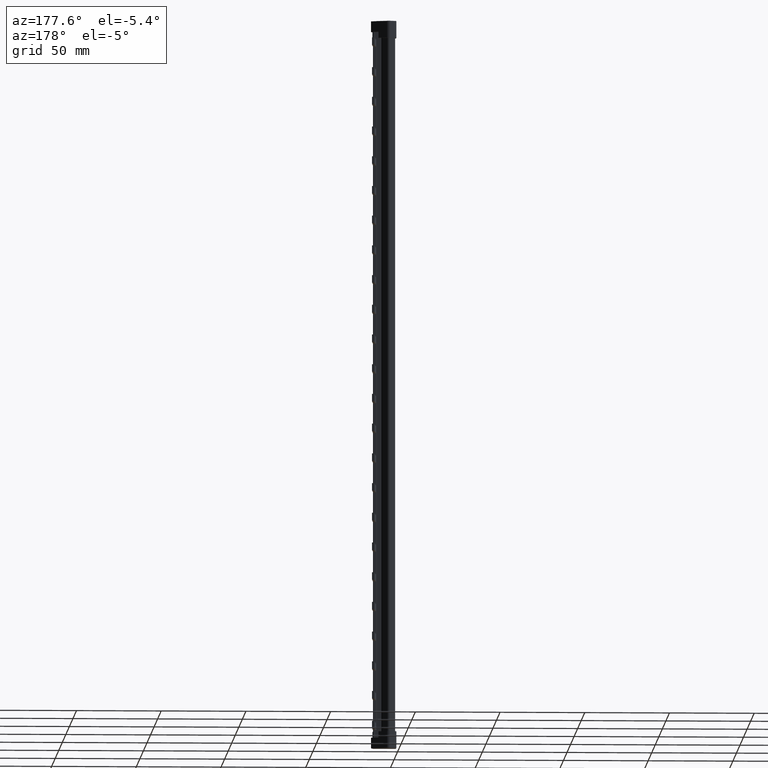
[diagram: clean part render]
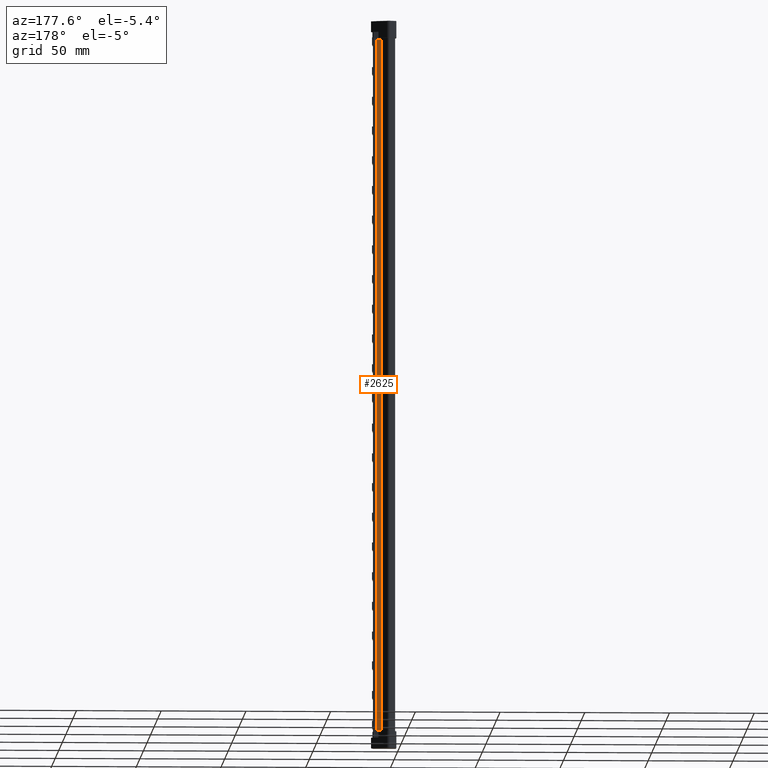
[diagram: same view with one face highlighted and labeled with its STEP entity id]
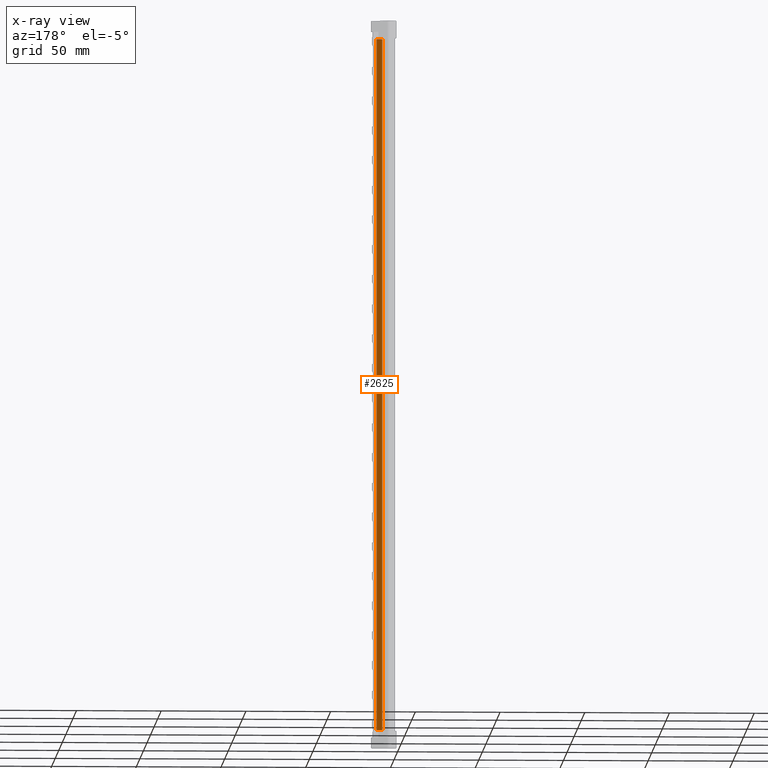
[diagram: x-ray of the same camera — body ghosted, the highlighted face saturated]
A machine part, auxiliary view. The second image highlights one B-rep face of the part: STEP entity #2625.
The next image is the same camera in x-ray: the body ghosted, the highlighted face saturated — about 0% of this face is hidden behind the body in this view.
In plain terms, the highlighted planar face has unit normal (-0, -1, 0).
Its self-contained STEP definition (entity closure, byte-faithful):
#1273 = EDGE_LOOP ( 'NONE', ( #11005, #11003, #10985, #10968 ) ) ;
#2625 = ADVANCED_FACE ( 'NONE', ( #27354 ), #27342, .F. ) ;
#5345 = EDGE_CURVE ( 'NONE', #26473, #26511, #9117, .T. ) ;
#9117 = LINE ( 'NONE', #9164, #10904 ) ;
#9164 = CARTESIAN_POINT ( 'NONE',  ( 10.37430495582721900, 2.600000585347678400, 209.0000000000000300 ) ) ;
#9165 = DIRECTION ( 'NONE',  ( 1.654357783328366900E-024, -2.593268938664190700E-023, -1.000000000000000000 ) ) ;
#10904 = VECTOR ( 'NONE', #9165, 1000.000000000000000 ) ;
#10968 = ORIENTED_EDGE ( 'NONE', *, *, #24474, .T. ) ;
#10985 = ORIENTED_EDGE ( 'NONE', *, *, #5345, .T. ) ;
#11003 = ORIENTED_EDGE ( 'NONE', *, *, #24453, .T. ) ;
#11005 = ORIENTED_EDGE ( 'NONE', *, *, #24480, .F. ) ;
#24453 = EDGE_CURVE ( 'NONE', #25783, #26473, #35904, .T. ) ;
#24474 = EDGE_CURVE ( 'NONE', #26511, #25791, #35982, .T. ) ;
#24480 = EDGE_CURVE ( 'NONE', #25783, #25791, #35968, .T. ) ;
#25783 = VERTEX_POINT ( 'NONE', #28251 ) ;
#25791 = VERTEX_POINT ( 'NONE', #28252 ) ;
#26473 = VERTEX_POINT ( 'NONE', #28953 ) ;
#26511 = VERTEX_POINT ( 'NONE', #28962 ) ;
#27342 = PLANE ( 'NONE',  #30293 ) ;
#27347 = DIRECTION ( 'NONE',  ( -4.379063324521067500E-047, -1.000000000000000000, 2.593268936129209800E-023 ) ) ;
#27348 = CARTESIAN_POINT ( 'NONE',  ( 0.5999928904455442700, 2.600000585347644700, 207.9000000000000100 ) ) ;
#27354 = FACE_OUTER_BOUND ( 'NONE', #1273, .T. ) ;
#27355 = DIRECTION ( 'NONE',  ( 1.654357377733165500E-024, -2.593268936129209800E-023, -1.000000000000000000 ) ) ;
#28251 = CARTESIAN_POINT ( 'NONE',  ( 6.977833211811479000, 2.600000585347644200, 209.0000000000000300 ) ) ;
#28252 = CARTESIAN_POINT ( 'NONE',  ( 6.977833211811478100, 2.600000585347644200, -199.9999999999999100 ) ) ;
#28953 = CARTESIAN_POINT ( 'NONE',  ( 10.37430495582721900, 2.600000585347678400, 209.0000000000000300 ) ) ;
#28962 = CARTESIAN_POINT ( 'NONE',  ( 10.37430495582721900, 2.600000585347678400, -199.9999999999999400 ) ) ;
#30293 = AXIS2_PLACEMENT_3D ( 'NONE', #27348, #27347, #27355 ) ;
#35244 = VECTOR ( 'NONE', #35962, 1000.000000000000000 ) ;
#35261 = VECTOR ( 'NONE', #35978, 1000.000000000000000 ) ;
#35515 = VECTOR ( 'NONE', #35918, 1000.000000000000000 ) ;
#35904 = LINE ( 'NONE', #35917, #35515 ) ;
#35917 = CARTESIAN_POINT ( 'NONE',  ( 0.5999928904455424900, 2.600000585347678400, 209.0000000000000300 ) ) ;
#35918 = DIRECTION ( 'NONE',  ( 1.000000000000000000, -8.886972758947302100E-049, 1.654357377733165300E-024 ) ) ;
#35962 = DIRECTION ( 'NONE',  ( -1.174935236590071000E-018, -5.041208906165829300E-019, -1.000000000000000000 ) ) ;
#35968 = LINE ( 'NONE', #35987, #35244 ) ;
#35978 = DIRECTION ( 'NONE',  ( -1.000000000000000000, 8.886972758947302100E-049, -1.654357377733165300E-024 ) ) ;
#35982 = LINE ( 'NONE', #35996, #35261 ) ;
#35987 = CARTESIAN_POINT ( 'NONE',  ( 6.977833211811479000, 2.600000585347644200, 219.0000000000000000 ) ) ;
#35996 = CARTESIAN_POINT ( 'NONE',  ( 0.5999928904455424900, 2.600000585347678400, -199.9999999999999400 ) ) ;